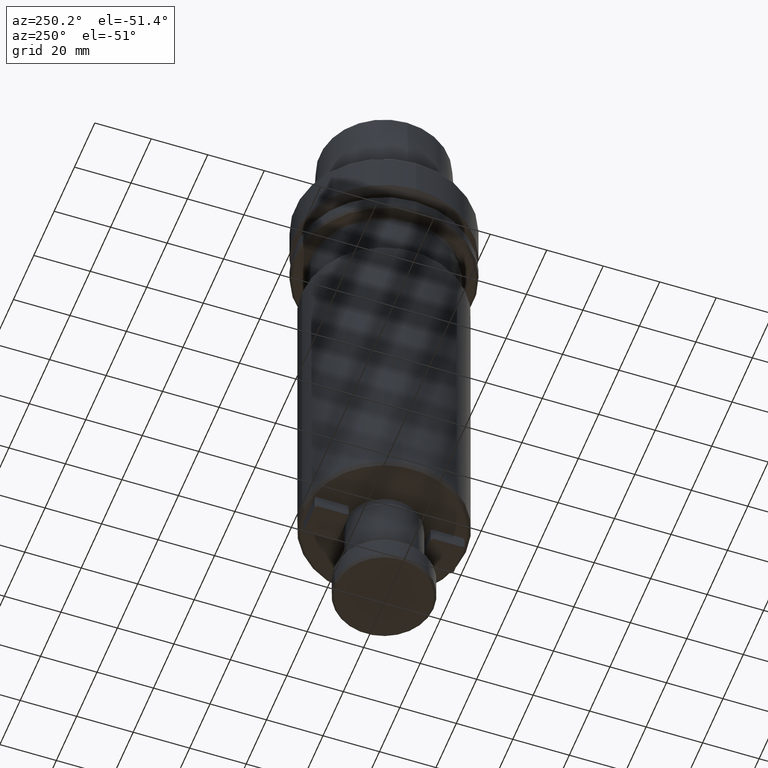
[diagram: clean part render]
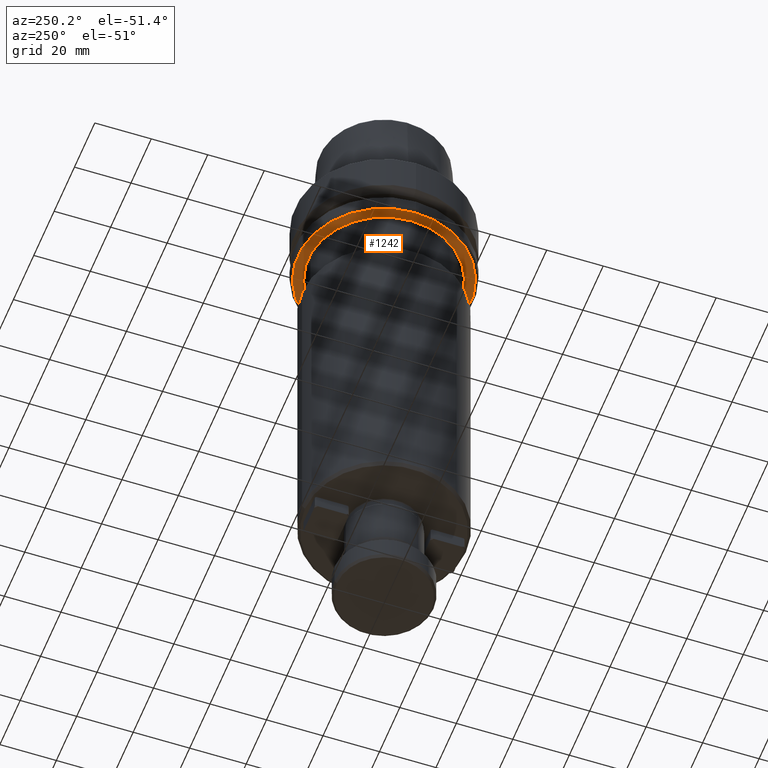
[diagram: same view with one face highlighted and labeled with its STEP entity id]
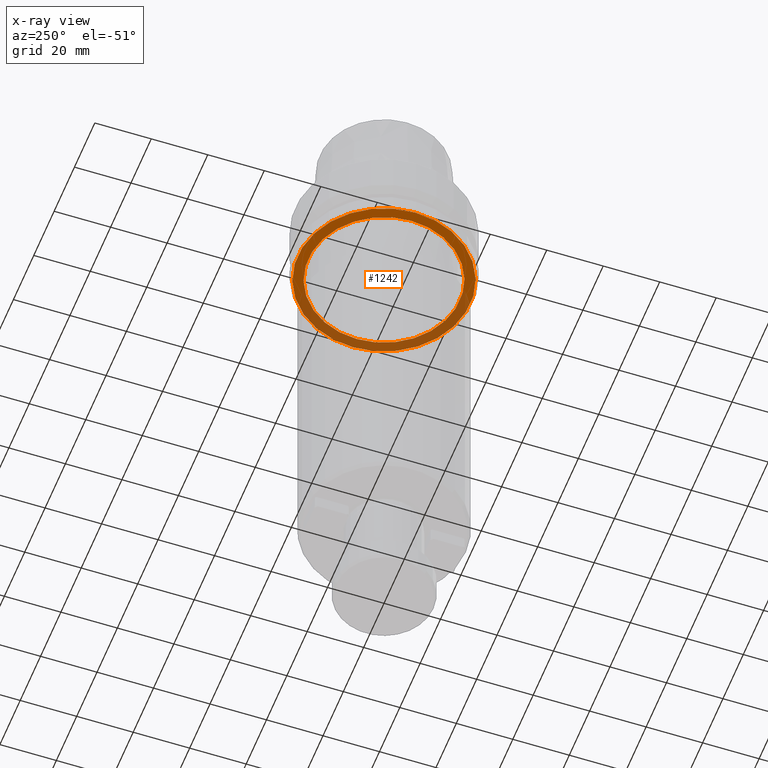
[diagram: x-ray of the same camera — body ghosted, the highlighted face saturated]
A machine part, auxiliary view. The second image highlights one B-rep face of the part: STEP entity #1242.
The next image is the same camera in x-ray: the body ghosted, the highlighted face saturated — about 42% of this face is hidden behind the body in this view.
In plain terms, the highlighted planar face has unit normal (0, -0, 1).
Its self-contained STEP definition (entity closure, byte-faithful):
#49 = CIRCLE ( 'NONE', #238, 30.53431457505076500 ) ;
#81 = AXIS2_PLACEMENT_3D ( 'NONE', #1634, #280, #1866 ) ;
#236 = CARTESIAN_POINT ( 'NONE',  ( -30.53431457505076500, 3.756694181974138600E-015, -26.00000000000001100 ) ) ;
#238 = AXIS2_PLACEMENT_3D ( 'NONE', #2345, #966, #2569 ) ;
#245 = DIRECTION ( 'NONE',  ( -0.0000000000000000000, -0.0000000000000000000, 1.000000000000000000 ) ) ;
#254 = EDGE_CURVE ( 'NONE', #886, #628, #2681, .T. ) ;
#280 = DIRECTION ( 'NONE',  ( -0.0000000000000000000, -0.0000000000000000000, 1.000000000000000000 ) ) ;
#321 = VERTEX_POINT ( 'NONE', #2700 ) ;
#350 = EDGE_LOOP ( 'NONE', ( #1443, #911 ) ) ;
#400 = CIRCLE ( 'NONE', #81, 26.79999999999999700 ) ;
#422 = DIRECTION ( 'NONE',  ( 0.0000000000000000000, -0.0000000000000000000, 1.000000000000000000 ) ) ;
#628 = VERTEX_POINT ( 'NONE', #2517 ) ;
#832 = CARTESIAN_POINT ( 'NONE',  ( 26.79999999999999700, 3.792454603811038600E-017, -26.00000000000000000 ) ) ;
#886 = VERTEX_POINT ( 'NONE', #236 ) ;
#911 = ORIENTED_EDGE ( 'NONE', *, *, #2674, .T. ) ;
#944 = ORIENTED_EDGE ( 'NONE', *, *, #254, .F. ) ;
#966 = DIRECTION ( 'NONE',  ( -0.0000000000000000000, -0.0000000000000000000, 1.000000000000000000 ) ) ;
#1020 = FACE_OUTER_BOUND ( 'NONE', #2602, .T. ) ;
#1203 = AXIS2_PLACEMENT_3D ( 'NONE', #1543, #422, #2007 ) ;
#1206 = ORIENTED_EDGE ( 'NONE', *, *, #1447, .F. ) ;
#1242 = ADVANCED_FACE ( 'NONE', ( #1621, #1020 ), #1536, .F. ) ;
#1306 = CARTESIAN_POINT ( 'NONE',  ( 0.0000000000000000000, 3.792454603811038600E-017, -26.00000000000000700 ) ) ;
#1440 = EDGE_CURVE ( 'NONE', #2264, #321, #400, .T. ) ;
#1443 = ORIENTED_EDGE ( 'NONE', *, *, #1440, .T. ) ;
#1447 = EDGE_CURVE ( 'NONE', #628, #886, #49, .T. ) ;
#1536 = PLANE ( 'NONE',  #1203 ) ;
#1539 = DIRECTION ( 'NONE',  ( 1.000000000000000000, 0.0000000000000000000, 0.0000000000000000000 ) ) ;
#1543 = CARTESIAN_POINT ( 'NONE',  ( 0.0000000000000000000, 30.53431457505076500, -26.00000000000000700 ) ) ;
#1598 = CARTESIAN_POINT ( 'NONE',  ( 0.0000000000000000000, 0.0000000000000000000, -26.00000000000001100 ) ) ;
#1621 = FACE_BOUND ( 'NONE', #350, .T. ) ;
#1634 = CARTESIAN_POINT ( 'NONE',  ( 0.0000000000000000000, 3.792454603811038600E-017, -26.00000000000000700 ) ) ;
#1819 = AXIS2_PLACEMENT_3D ( 'NONE', #1598, #245, #1830 ) ;
#1830 = DIRECTION ( 'NONE',  ( 1.000000000000000000, 0.0000000000000000000, 0.0000000000000000000 ) ) ;
#1866 = DIRECTION ( 'NONE',  ( 1.000000000000000000, 0.0000000000000000000, 0.0000000000000000000 ) ) ;
#2007 = DIRECTION ( 'NONE',  ( 1.000000000000000000, 0.0000000000000000000, 0.0000000000000000000 ) ) ;
#2264 = VERTEX_POINT ( 'NONE', #832 ) ;
#2345 = CARTESIAN_POINT ( 'NONE',  ( 0.0000000000000000000, 0.0000000000000000000, -26.00000000000001100 ) ) ;
#2517 = CARTESIAN_POINT ( 'NONE',  ( 30.53431457505076500, 0.0000000000000000000, -26.00000000000001100 ) ) ;
#2569 = DIRECTION ( 'NONE',  ( 1.000000000000000000, 0.0000000000000000000, 0.0000000000000000000 ) ) ;
#2602 = EDGE_LOOP ( 'NONE', ( #1206, #944 ) ) ;
#2674 = EDGE_CURVE ( 'NONE', #321, #2264, #2737, .T. ) ;
#2681 = CIRCLE ( 'NONE', #1819, 30.53431457505076500 ) ;
#2700 = CARTESIAN_POINT ( 'NONE',  ( -26.79999999999999700, 3.319977967753016800E-015, -26.00000000000000000 ) ) ;
#2737 = CIRCLE ( 'NONE', #2906, 26.79999999999999700 ) ;
#2906 = AXIS2_PLACEMENT_3D ( 'NONE', #1306, #2949, #1539 ) ;
#2949 = DIRECTION ( 'NONE',  ( -0.0000000000000000000, -0.0000000000000000000, 1.000000000000000000 ) ) ;